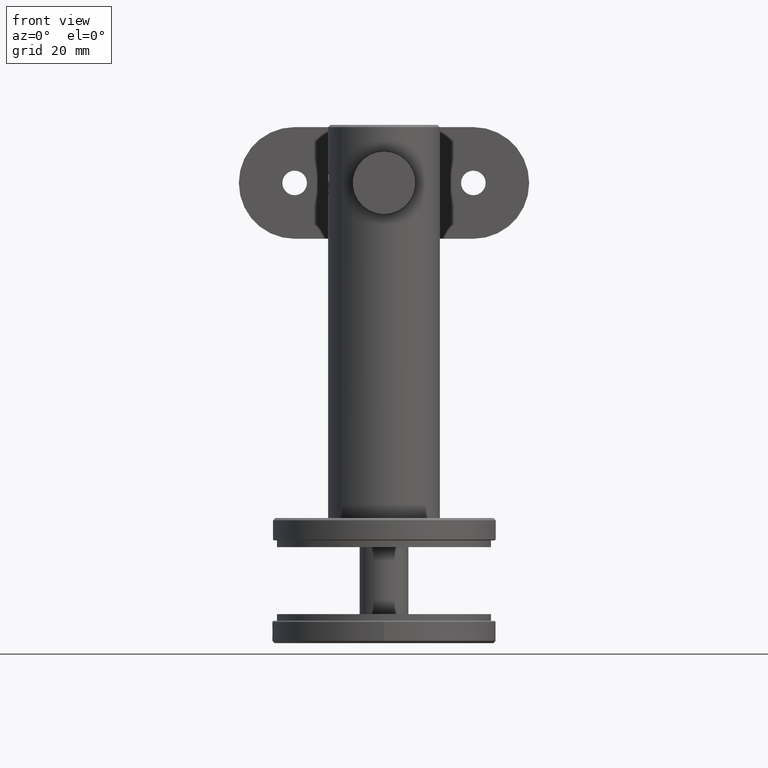
[diagram: clean part render]
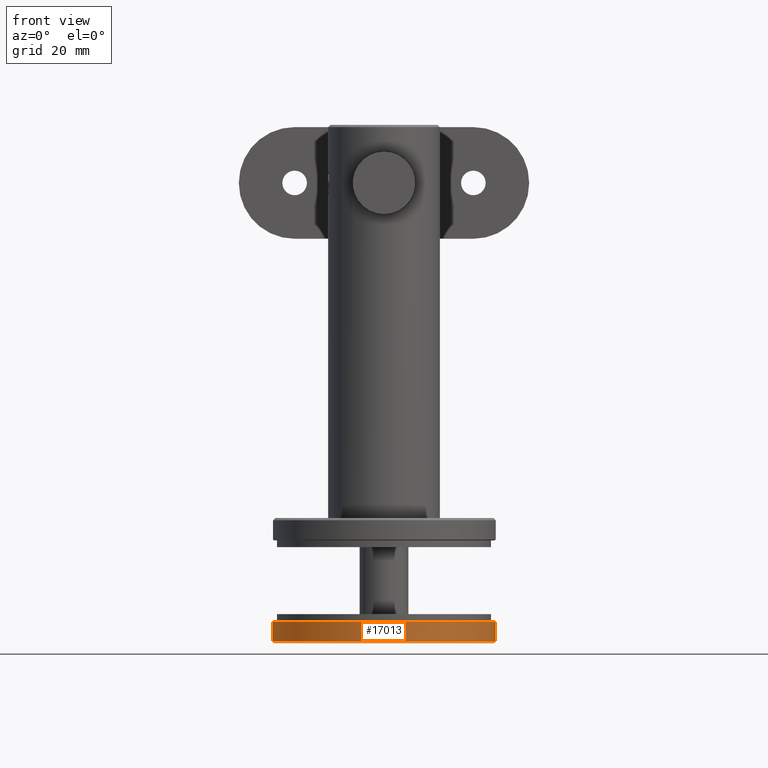
[diagram: same view with one face highlighted and labeled with its STEP entity id]
A machine part, front view. The second image highlights one B-rep face of the part: STEP entity #17013.
In plain terms, the highlighted cylindrical surface (bore or boss wall) has radius 25 mm, axis along (-0, 0, -1).
Its self-contained STEP definition (entity closure, byte-faithful):
#56 = CARTESIAN_POINT ( 'NONE',  ( -24.97157416320206700, 1.585585392971524500, 1.193085641653804300 ) ) ;
#73 = FACE_BOUND ( 'NONE', #12953, .T. ) ;
#337 = EDGE_CURVE ( 'NONE', #15826, #15826, #11225, .T. ) ;
#567 = CARTESIAN_POINT ( 'NONE',  ( -24.99999368694633600, 1.000105217576151800, 0.1965001737541025600 ) ) ;
#591 = EDGE_LOOP ( 'NONE', ( #13771 ) ) ;
#629 = CARTESIAN_POINT ( 'NONE',  ( -24.98340648196891700, 1.306878897937073800, -0.9143373182127113600 ) ) ;
#700 = CARTESIAN_POINT ( 'NONE',  ( -24.96575209631424000, 1.743834923344436300, -1.310311233237751800 ) ) ;
#769 = CARTESIAN_POINT ( 'NONE',  ( -24.95739512455913500, 2.892629217940410100, -1.460828771148607200 ) ) ;
#840 = CARTESIAN_POINT ( 'NONE',  ( -24.95495942693557000, 2.698242199524419700, 1.499999999999998400 ) ) ;
#1541 = EDGE_CURVE ( 'NONE', #17300, #17300, #2101, .T. ) ;
#1588 = CARTESIAN_POINT ( 'NONE',  ( -24.98336912034094600, 1.300902217552167000, 0.9221965665937169600 ) ) ;
#1655 = CARTESIAN_POINT ( 'NONE',  ( -24.98925249792974400, 1.189152710838828200, 0.7548846248046488000 ) ) ;
#2101 = B_SPLINE_CURVE_WITH_KNOTS ( 'NONE', 3,
 ( #3270, #4829, #12891, #16066, #20814, #6468, #9670, #56, #11272, #1588, #1655, #12822, #567, #2317, #10402, #7202, #18433, #7273, #11788, #629, #19925, #16855, #700, #20063, #13502, #18225, #4010, #11866, #769, #15262, #13713, #13573, #19776, #18365, #2384, #16918, #8857, #3939, #5721, #10476, #2244, #3873, #12004, #13437, #5654, #11934, #18504, #15124, #840, #10330 ),
 .UNSPECIFIED., .T., .F.,
 ( 4, 2, 2, 2, 2, 2, 2, 2, 2, 2, 2, 2, 2, 2, 2, 2, 2, 2, 2, 2, 2, 2, 2, 2, 4 ),
 ( 0.0000000000000000000, 0.0002931375252139876500, 0.0005862750504279753100, 0.0008794125756419641000, 0.001172550100855953000, 0.001758825151283929900, 0.002345100201711907300, 0.002638237726925896100, 0.002931375252139884400, 0.003224512777353873700, 0.003517650302567862000, 0.004103925352995837900, 0.004397062878209826200, 0.004690200403423813700, 0.005276475453851788700, 0.005862750504279763700, 0.006155888029493752000, 0.006449025554707739500, 0.006742163079921727000, 0.007035300605135714500, 0.007621575655563689500, 0.007914713180777677900, 0.008207850705991665300, 0.008794125756419642100, 0.009380400806847617000 ),
 .UNSPECIFIED. ) ;
#2244 = CARTESIAN_POINT ( 'NONE',  ( -24.99760101654468500, 3.961401732365593500, 0.3912139791242421600 ) ) ;
#2317 = CARTESIAN_POINT ( 'NONE',  ( -25.00000313709404800, 0.9999477150916520300, -0.09704283434732685600 ) ) ;
#2384 = CARTESIAN_POINT ( 'NONE',  ( -24.99128169093220100, 3.847433579299660300, -0.6663861271260884700 ) ) ;
#3270 = CARTESIAN_POINT ( 'NONE',  ( -24.95495942693556300, 2.499999999999999600, 1.499999999999999100 ) ) ;
#3790 = CIRCLE ( 'NONE', #9645, 25.00000000000000000 ) ;
#3873 = CARTESIAN_POINT ( 'NONE',  ( -24.99134441230504300, 3.848593765631900700, 0.6640637812022393000 ) ) ;
#3939 = CARTESIAN_POINT ( 'NONE',  ( -24.99940083598973600, 3.990103164725086000, -0.1978662540944960400 ) ) ;
#4010 = CARTESIAN_POINT ( 'NONE',  ( -24.95496154263445700, 2.401562363641519300, -1.499964801877700800 ) ) ;
#4829 = CARTESIAN_POINT ( 'NONE',  ( -24.95495942693555900, 2.400878900237789700, 1.499999999999999600 ) ) ;
#5089 = FACE_OUTER_BOUND ( 'NONE', #10840, .T. ) ;
#5654 = CARTESIAN_POINT ( 'NONE',  ( -24.98046469887881600, 3.630659357507107100, 0.9905503220831285400 ) ) ;
#5721 = CARTESIAN_POINT ( 'NONE',  ( -24.99999402977303500, 3.999900496168235600, -0.1004706401953398000 ) ) ;
#6468 = CARTESIAN_POINT ( 'NONE',  ( -24.96365933151905400, 1.834769709829958000, 1.348011344051604800 ) ) ;
#6621 = FACE_OUTER_BOUND ( 'NONE', #591, .T. ) ;
#7202 = CARTESIAN_POINT ( 'NONE',  ( -24.99716120778542100, 1.047955471894446400, -0.3888275613639248200 ) ) ;
#7273 = CARTESIAN_POINT ( 'NONE',  ( -24.99134634170768300, 1.151371930215209200, -0.6639727762468844400 ) ) ;
#8033 = DIRECTION ( 'NONE',  ( -0.0000000000000000000, 1.000000000000000000, -0.0000000000000000000 ) ) ;
#8281 = ORIENTED_EDGE ( 'NONE', *, *, #11196, .T. ) ;
#8857 = CARTESIAN_POINT ( 'NONE',  ( -24.99714769670774900, 3.951812058794312900, -0.3896155053030132500 ) ) ;
#9645 = AXIS2_PLACEMENT_3D ( 'NONE', #20721, #8033, #11113 ) ;
#9670 = CARTESIAN_POINT ( 'NONE',  ( -24.96613566754586300, 1.748622561190733300, 1.301936775083927700 ) ) ;
#9994 = AXIS2_PLACEMENT_3D ( 'NONE', #18601, #16802, #13597 ) ;
#10330 = CARTESIAN_POINT ( 'NONE',  ( -24.95495942693556300, 2.499999999999999600, 1.499999999999999100 ) ) ;
#10402 = CARTESIAN_POINT ( 'NONE',  ( -24.99941339213296100, 1.009686336925851100, -0.1964315904634703100 ) ) ;
#10476 = CARTESIAN_POINT ( 'NONE',  ( -25.00001180604485600, 4.000196767512097300, 0.1964511403229316800 ) ) ;
#10840 = EDGE_LOOP ( 'NONE', ( #8281 ) ) ;
#10892 = DIRECTION ( 'NONE',  ( 0.0000000000000000000, -1.000000000000000000, 0.0000000000000000000 ) ) ;
#11113 = DIRECTION ( 'NONE',  ( 0.0000000000000000000, 0.0000000000000000000, 1.000000000000000000 ) ) ;
#11196 = EDGE_CURVE ( 'NONE', #12815, #12815, #3790, .T. ) ;
#11225 = CIRCLE ( 'NONE', #17934, 25.00000000000000000 ) ;
#11272 = CARTESIAN_POINT ( 'NONE',  ( -24.97455658330181900, 1.508409230221276600, 1.129742557008798700 ) ) ;
#11788 = CARTESIAN_POINT ( 'NONE',  ( -24.98882576936013000, 1.198327286781012600, -0.7517970758957395200 ) ) ;
#11853 = CYLINDRICAL_SURFACE ( 'NONE', #9994, 25.00000000000000000 ) ;
#11866 = CARTESIAN_POINT ( 'NONE',  ( -24.95495521292416200, 2.695261810398797300, -1.500070106993404800 ) ) ;
#11934 = CARTESIAN_POINT ( 'NONE',  ( -24.97164757035087100, 3.423189266056673800, 1.198350396264459500 ) ) ;
#12004 = CARTESIAN_POINT ( 'NONE',  ( -24.98887275092948800, 3.802575992214811200, 0.7502602059243880200 ) ) ;
#12815 = VERTEX_POINT ( 'NONE', #20046 ) ;
#12822 = CARTESIAN_POINT ( 'NONE',  ( -24.99754825602174400, 1.039520961345591800, 0.3939192682755474100 ) ) ;
#12891 = CARTESIAN_POINT ( 'NONE',  ( -24.95554957949472600, 2.303418639247900100, 1.490271655237032800 ) ) ;
#12953 = EDGE_LOOP ( 'NONE', ( #20085 ) ) ;
#13437 = CARTESIAN_POINT ( 'NONE',  ( -24.98344571714367000, 3.693944200878966500, 0.9132862844013306400 ) ) ;
#13502 = CARTESIAN_POINT ( 'NONE',  ( -24.95782287439013600, 2.109926360191465300, -1.451705052751577100 ) ) ;
#13573 = CARTESIAN_POINT ( 'NONE',  ( -24.98038257970437200, 3.628847139713026000, -0.9926061310305647200 ) ) ;
#13597 = DIRECTION ( 'NONE',  ( 0.0000000000000000000, 0.0000000000000000000, -1.000000000000000000 ) ) ;
#13713 = CARTESIAN_POINT ( 'NONE',  ( -24.97157358963035600, 3.421203391268522200, -1.199848114015400300 ) ) ;
#13771 = ORIENTED_EDGE ( 'NONE', *, *, #337, .T. ) ;
#15124 = CARTESIAN_POINT ( 'NONE',  ( -24.95743644530080700, 2.895184109153693600, 1.460138689120589200 ) ) ;
#15262 = CARTESIAN_POINT ( 'NONE',  ( -24.96568774851645900, 3.253757955737226000, -1.311498130215551300 ) ) ;
#15826 = VERTEX_POINT ( 'NONE', #16836 ) ;
#16066 = CARTESIAN_POINT ( 'NONE',  ( -24.95779639711049900, 2.111682582933336800, 1.452158194344110600 ) ) ;
#16802 = DIRECTION ( 'NONE',  ( -0.0000000000000000000, -1.000000000000000000, -0.0000000000000000000 ) ) ;
#16836 = CARTESIAN_POINT ( 'NONE',  ( 0.0000000000000000000, 4.799999999999990900, 25.00000000000000000 ) ) ;
#16855 = CARTESIAN_POINT ( 'NONE',  ( -24.97156582645983000, 1.578777467225774600, -1.200233323101090700 ) ) ;
#16918 = CARTESIAN_POINT ( 'NONE',  ( -24.99546001406919200, 3.922827470226998100, -0.4849842379065917300 ) ) ;
#17013 = ADVANCED_FACE ( 'NONE', ( #73, #6621, #5089 ), #11853, .T. ) ;
#17300 = VERTEX_POINT ( 'NONE', #19909 ) ;
#17934 = AXIS2_PLACEMENT_3D ( 'NONE', #20219, #10892, #18591 ) ;
#18225 = CARTESIAN_POINT ( 'NONE',  ( -24.95555880984478800, 2.302135585148520100, -1.490119014707691000 ) ) ;
#18365 = CARTESIAN_POINT ( 'NONE',  ( -24.98880583264214300, 3.801300700670501100, -0.7524868997468168200 ) ) ;
#18433 = CARTESIAN_POINT ( 'NONE',  ( -24.99551156729559800, 1.076271019388290100, -0.4823414848162960200 ) ) ;
#18504 = CARTESIAN_POINT ( 'NONE',  ( -24.96575768507296200, 3.256037928068396400, 1.310184003457698100 ) ) ;
#18591 = DIRECTION ( 'NONE',  ( 0.0000000000000000000, 0.0000000000000000000, 1.000000000000000000 ) ) ;
#18601 = CARTESIAN_POINT ( 'NONE',  ( 0.0000000000000000000, 5.000000000000000000, 0.0000000000000000000 ) ) ;
#19776 = CARTESIAN_POINT ( 'NONE',  ( -24.98336349212566200, 3.692232339669165000, -0.9155337766041729000 ) ) ;
#19909 = CARTESIAN_POINT ( 'NONE',  ( -24.95495942693556300, 2.500000000000000000, 1.499999999999999600 ) ) ;
#19925 = CARTESIAN_POINT ( 'NONE',  ( -24.98048463871673900, 1.368849891667112600, -0.9901021051446198300 ) ) ;
#20046 = CARTESIAN_POINT ( 'NONE',  ( 0.0000000000000000000, 0.4999999999999831200, 25.00000000000000000 ) ) ;
#20063 = CARTESIAN_POINT ( 'NONE',  ( -24.95947895492115600, 2.016428212892981400, -1.423317819213181900 ) ) ;
#20085 = ORIENTED_EDGE ( 'NONE', *, *, #1541, .T. ) ;
#20219 = CARTESIAN_POINT ( 'NONE',  ( 0.0000000000000000000, 4.799999999999990900, 0.0000000000000000000 ) ) ;
#20721 = CARTESIAN_POINT ( 'NONE',  ( 0.0000000000000000000, 0.4999999999999831200, 0.0000000000000000000 ) ) ;
#20814 = CARTESIAN_POINT ( 'NONE',  ( -24.95947942501001600, 2.016412069713230600, 1.423309044562175700 ) ) ;